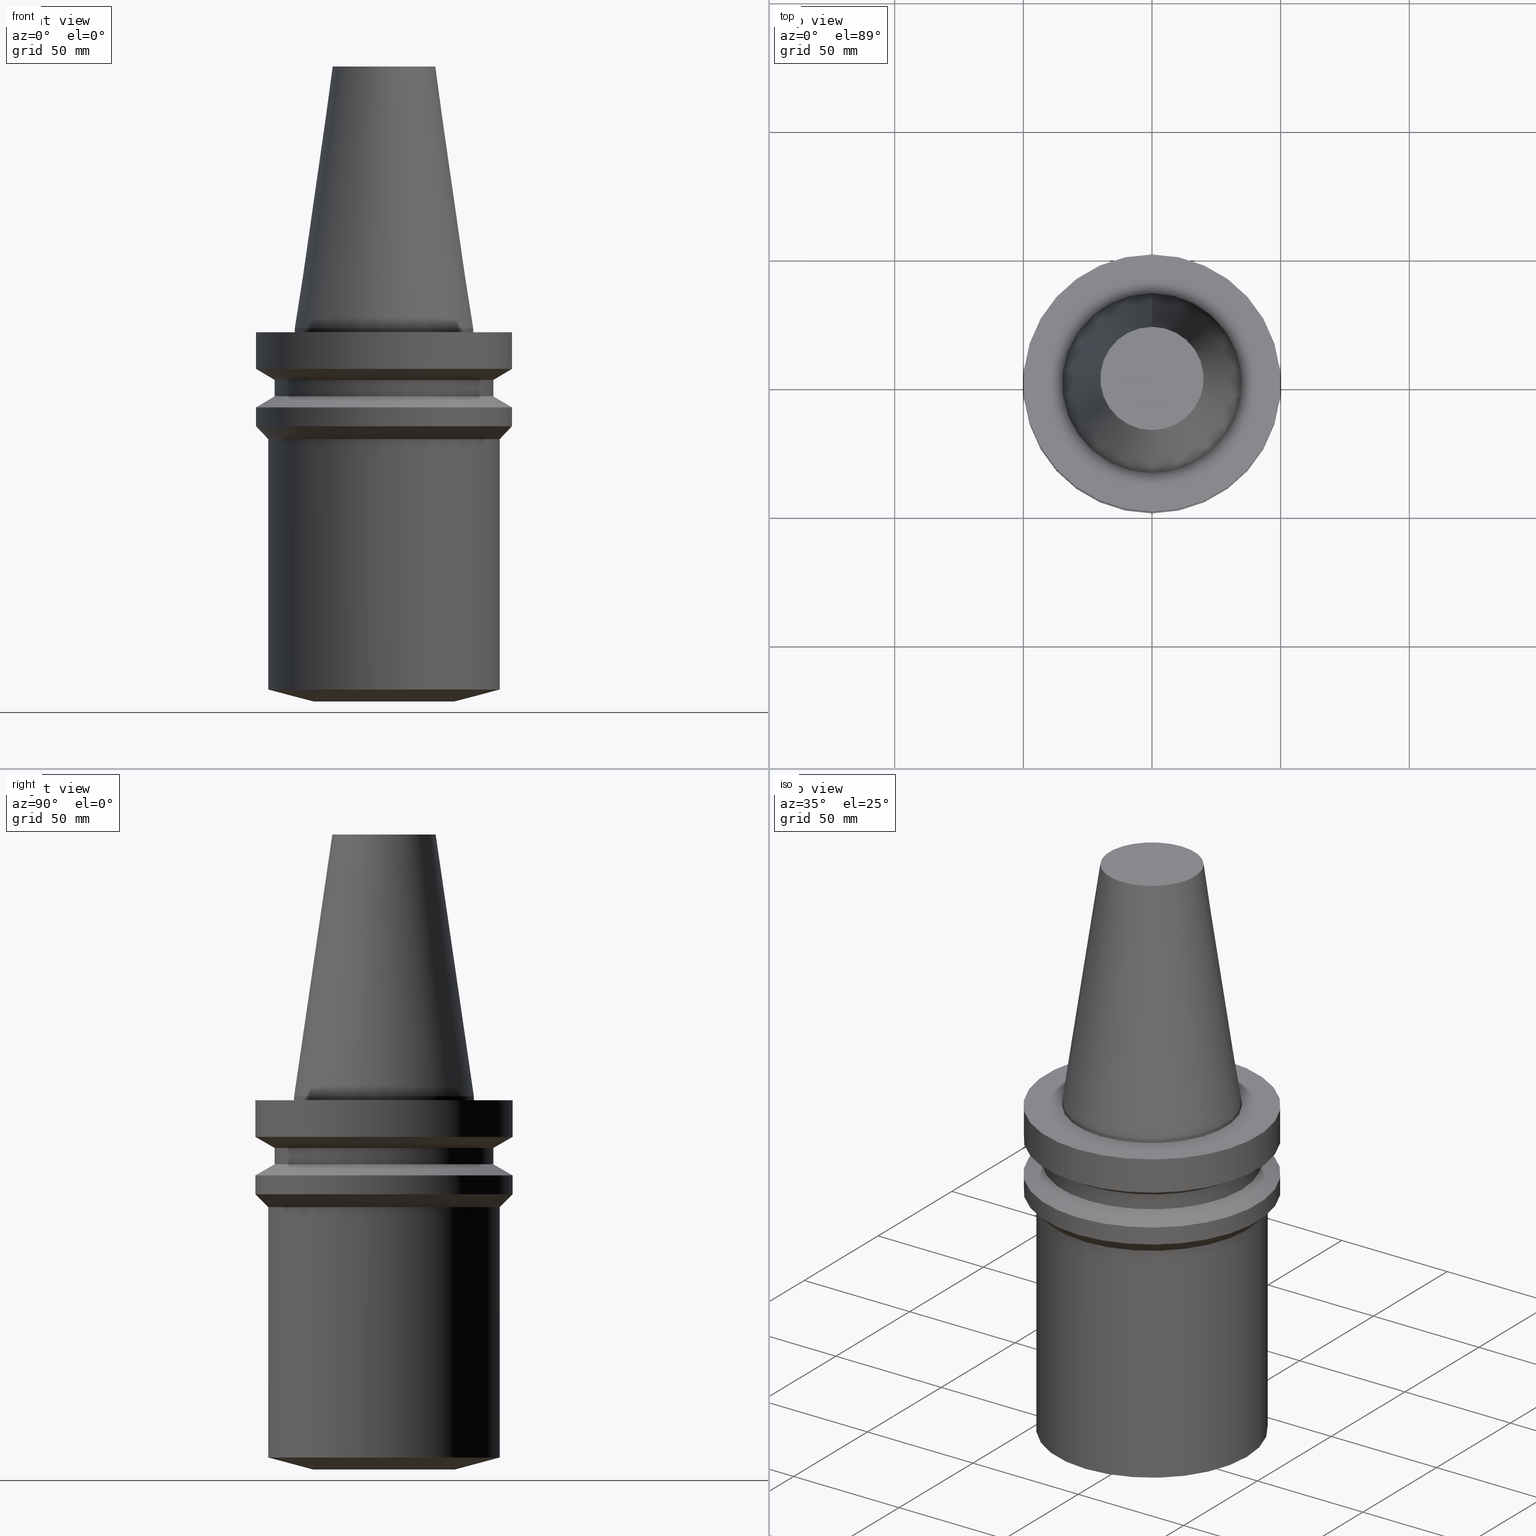
[diagram: canonical four-view strip — front | top / right | iso, engineering-drawing reading convention]
A machine part, canonical four-view strip (front | top / right | iso — engineering-drawing reading convention). The complete STEP part file that produces these views, byte-faithful:
ISO-10303-21;
HEADER;
FILE_DESCRIPTION((''),'1');
FILE_NAME('U:/Translate/02_3D_Field-HP\X2\FF71FF6FFF8CFF9F5916\X0\2013/02_Step_Field-HP\X2\FF71FF6FFF8CFF9F5916\X0\2013/BBTM/BBT50M-BSL50-145.stp','2015-02-11T01:39:47',(''),(''),'Spatial Interop R21 SP3','Kubotek KeyCreator 2011 V10.0.2 (22737)',' ');
FILE_SCHEMA(('automotive_design'));
ENDSEC;
DATA;
#1=MECHANICAL_DESIGN_GEOMETRIC_PRESENTATION_REPRESENTATION(' ',(#10,#11,#12,#13,#14,#15,#16,#17,#18,#19,#20,#21,#22,#23,#24,#25,#26,#27,#28,#29,#30,#31,#32,#33,#34,#35),#6);
#2=PRODUCT_DEFINITION_CONTEXT('',#36,'design');
#3=APPLICATION_PROTOCOL_DEFINITION('INTERNATIONAL STANDARD','automotive_design',1994,#36);
#4=PRODUCT_CATEGORY_RELATIONSHIP('NONE','NONE',#37,#38);
#5=SHAPE_DEFINITION_REPRESENTATION(#39,#40);
#6= (GEOMETRIC_REPRESENTATION_CONTEXT(3)GLOBAL_UNCERTAINTY_ASSIGNED_CONTEXT((#43))GLOBAL_UNIT_ASSIGNED_CONTEXT((#45,#46,#47))REPRESENTATION_CONTEXT('NONE','WORKSPACE'));
#10=STYLED_ITEM('',(#49,#50),#51);
#11=STYLED_ITEM('',(#52),#53);
#12=STYLED_ITEM('',(#54,#55),#56);
#13=STYLED_ITEM('',(#57,#58),#59);
#14=STYLED_ITEM('',(#60,#61),#62);
#15=STYLED_ITEM('',(#63),#64);
#16=STYLED_ITEM('',(#65,#66),#67);
#17=STYLED_ITEM('',(#68),#69);
#18=STYLED_ITEM('',(#70),#71);
#19=STYLED_ITEM('',(#72,#73),#74);
#20=STYLED_ITEM('',(#75),#76);
#21=STYLED_ITEM('',(#77),#78);
#22=STYLED_ITEM('',(#79),#80);
#23=STYLED_ITEM('',(#81),#82);
#24=STYLED_ITEM('',(#83),#84);
#25=STYLED_ITEM('',(#85),#86);
#26=STYLED_ITEM('',(#87,#88),#89);
#27=STYLED_ITEM('',(#90,#91),#92);
#28=STYLED_ITEM('',(#93,#94),#95);
#29=STYLED_ITEM('',(#96),#97);
#30=STYLED_ITEM('',(#98,#99),#100);
#31=STYLED_ITEM('',(#101),#102);
#32=STYLED_ITEM('',(#103,#104),#105);
#33=STYLED_ITEM('',(#106,#107),#108);
#34=STYLED_ITEM('',(#109,#110),#111);
#35=STYLED_ITEM('',(#112,#113),#114);
#36=APPLICATION_CONTEXT(' ');
#37=PRODUCT_CATEGORY('part','NONE');
#38=PRODUCT_RELATED_PRODUCT_CATEGORY('detail',' ',(#115));
#39=PRODUCT_DEFINITION_SHAPE('NONE','NONE',#116);
#40=ADVANCED_BREP_SHAPE_REPRESENTATION('Unnamed[1]',(#74,#117),#6);
#43=UNCERTAINTY_MEASURE_WITH_UNIT(LENGTH_MEASURE(1.0E-006),#45,'','');
#45= (CONVERSION_BASED_UNIT('MILLIMETRE',#120)LENGTH_UNIT()NAMED_UNIT(#123));
#46= (NAMED_UNIT(#125)PLANE_ANGLE_UNIT()SI_UNIT($,.RADIAN.));
#47= (NAMED_UNIT(#125)SOLID_ANGLE_UNIT()SI_UNIT($,.STERADIAN.));
#49=PRESENTATION_STYLE_ASSIGNMENT((#131));
#50=PRESENTATION_STYLE_ASSIGNMENT((#132));
#51=ADVANCED_FACE('Unnamed[1]',(#133,#134),#135,.T.);
#52=PRESENTATION_STYLE_ASSIGNMENT((#136));
#53=EDGE_CURVE('Unnamed[1]',#137,#137,#138,.T.);
#54=PRESENTATION_STYLE_ASSIGNMENT((#139));
#55=PRESENTATION_STYLE_ASSIGNMENT((#140));
#56=ADVANCED_FACE('Unnamed[1]',(#141,#142),#143,.T.);
#57=PRESENTATION_STYLE_ASSIGNMENT((#144));
#58=PRESENTATION_STYLE_ASSIGNMENT((#145));
#59=ADVANCED_FACE('Unnamed[1]',(#146,#147),#148,.T.);
#60=PRESENTATION_STYLE_ASSIGNMENT((#149));
#61=PRESENTATION_STYLE_ASSIGNMENT((#150));
#62=ADVANCED_FACE('Unnamed[1]',(#151,#152),#153,.T.);
#63=PRESENTATION_STYLE_ASSIGNMENT((#154));
#64=EDGE_CURVE('Unnamed[1]',#155,#155,#156,.T.);
#65=PRESENTATION_STYLE_ASSIGNMENT((#157));
#66=PRESENTATION_STYLE_ASSIGNMENT((#158));
#67=ADVANCED_FACE('Unnamed[1]',(#159),#160,.T.);
#68=PRESENTATION_STYLE_ASSIGNMENT((#161));
#69=EDGE_CURVE('Unnamed[1]',#162,#162,#163,.T.);
#70=PRESENTATION_STYLE_ASSIGNMENT((#164));
#71=EDGE_CURVE('Unnamed[1]',#165,#165,#166,.T.);
#72=PRESENTATION_STYLE_ASSIGNMENT((#167));
#73=PRESENTATION_STYLE_ASSIGNMENT((#168));
#74=MANIFOLD_SOLID_BREP('Unnamed[1]',#169);
#75=PRESENTATION_STYLE_ASSIGNMENT((#170));
#76=EDGE_CURVE('Unnamed[1]',#171,#171,#172,.T.);
#77=PRESENTATION_STYLE_ASSIGNMENT((#173));
#78=EDGE_CURVE('Unnamed[1]',#174,#174,#175,.T.);
#79=PRESENTATION_STYLE_ASSIGNMENT((#176));
#80=EDGE_CURVE('Unnamed[1]',#177,#177,#178,.T.);
#81=PRESENTATION_STYLE_ASSIGNMENT((#179));
#82=EDGE_CURVE('Unnamed[1]',#180,#180,#181,.T.);
#83=PRESENTATION_STYLE_ASSIGNMENT((#182));
#84=EDGE_CURVE('Unnamed[1]',#183,#183,#184,.T.);
#85=PRESENTATION_STYLE_ASSIGNMENT((#185));
#86=EDGE_CURVE('Unnamed[1]',#186,#186,#187,.T.);
#87=PRESENTATION_STYLE_ASSIGNMENT((#188));
#88=PRESENTATION_STYLE_ASSIGNMENT((#189));
#89=ADVANCED_FACE('Unnamed[1]',(#190),#191,.T.);
#90=PRESENTATION_STYLE_ASSIGNMENT((#192));
#91=PRESENTATION_STYLE_ASSIGNMENT((#193));
#92=ADVANCED_FACE('Unnamed[1]',(#194,#195),#196,.T.);
#93=PRESENTATION_STYLE_ASSIGNMENT((#197));
#94=PRESENTATION_STYLE_ASSIGNMENT((#198));
#95=ADVANCED_FACE('Unnamed[1]',(#199,#200),#201,.T.);
#96=PRESENTATION_STYLE_ASSIGNMENT((#202));
#97=EDGE_CURVE('Unnamed[1]',#203,#203,#204,.T.);
#98=PRESENTATION_STYLE_ASSIGNMENT((#205));
#99=PRESENTATION_STYLE_ASSIGNMENT((#206));
#100=ADVANCED_FACE('Unnamed[1]',(#207,#208),#209,.T.);
#101=PRESENTATION_STYLE_ASSIGNMENT((#210));
#102=EDGE_CURVE('Unnamed[1]',#211,#211,#212,.T.);
#103=PRESENTATION_STYLE_ASSIGNMENT((#213));
#104=PRESENTATION_STYLE_ASSIGNMENT((#214));
#105=ADVANCED_FACE('Unnamed[1]',(#215,#216),#217,.T.);
#106=PRESENTATION_STYLE_ASSIGNMENT((#218));
#107=PRESENTATION_STYLE_ASSIGNMENT((#219));
#108=ADVANCED_FACE('Unnamed[1]',(#220,#221),#222,.T.);
#109=PRESENTATION_STYLE_ASSIGNMENT((#223));
#110=PRESENTATION_STYLE_ASSIGNMENT((#224));
#111=ADVANCED_FACE('Unnamed[1]',(#225,#226),#227,.T.);
#112=PRESENTATION_STYLE_ASSIGNMENT((#228));
#113=PRESENTATION_STYLE_ASSIGNMENT((#229));
#114=ADVANCED_FACE('Unnamed[1]',(#230,#231),#232,.T.);
#115=PRODUCT('Unnamed[1]','Unnamed[1]','PART-Unnamed[1]-DESC',(#233));
#116=PRODUCT_DEFINITION('NONE','NONE',#234,#2);
#117=AXIS2_PLACEMENT_3D('',#235,#236,#237);
#120=LENGTH_MEASURE_WITH_UNIT(LENGTH_MEASURE(1.0),#238);
#123=DIMENSIONAL_EXPONENTS(1.0,0.0,0.0,0.0,0.0,0.0,0.0);
#125=DIMENSIONAL_EXPONENTS(0.0,0.0,0.0,0.0,0.0,0.0,0.0);
#131=SURFACE_STYLE_USAGE(.BOTH.,#239);
#132=CURVE_STYLE('',#240,POSITIVE_LENGTH_MEASURE(1000.0),#241);
#133=FACE_BOUND('',#242,.T.);
#134=FACE_BOUND('',#243,.T.);
#135=CYLINDRICAL_SURFACE('',#244,42.5);
#136=CURVE_STYLE('',#245,POSITIVE_LENGTH_MEASURE(1000.0),#246);
#137=VERTEX_POINT('',#247);
#138=CIRCLE('',#248,20.0791666658118);
#139=SURFACE_STYLE_USAGE(.BOTH.,#249);
#140=CURVE_STYLE('',#250,POSITIVE_LENGTH_MEASURE(1000.0),#251);
#141=FACE_BOUND('',#252,.T.);
#142=FACE_BOUND('',#253,.T.);
#143=CONICAL_SURFACE('',#254,47.5,0.785398163397448);
#144=SURFACE_STYLE_USAGE(.BOTH.,#255);
#145=CURVE_STYLE('',#256,POSITIVE_LENGTH_MEASURE(1000.0),#257);
#146=FACE_OUTER_BOUND('',#258,.T.);
#147=FACE_BOUND('',#259,.T.);
#148=PLANE('',#260);
#149=SURFACE_STYLE_USAGE(.BOTH.,#261);
#150=CURVE_STYLE('',#262,POSITIVE_LENGTH_MEASURE(1000.0),#263);
#151=FACE_BOUND('',#264,.T.);
#152=FACE_BOUND('',#265,.T.);
#153=CYLINDRICAL_SURFACE('',#266,34.925);
#154=CURVE_STYLE('',#267,POSITIVE_LENGTH_MEASURE(1000.0),#268);
#155=VERTEX_POINT('',#269);
#156=CIRCLE('',#270,42.5);
#157=SURFACE_STYLE_USAGE(.BOTH.,#271);
#158=CURVE_STYLE('',#272,POSITIVE_LENGTH_MEASURE(1000.0),#273);
#159=FACE_OUTER_BOUND('',#274,.T.);
#160=PLANE('',#275);
#161=CURVE_STYLE('',#276,POSITIVE_LENGTH_MEASURE(1000.0),#277);
#162=VERTEX_POINT('',#278);
#163=CIRCLE('',#279,50.0);
#164=CURVE_STYLE('',#280,POSITIVE_LENGTH_MEASURE(1000.0),#281);
#165=VERTEX_POINT('',#282);
#166=CIRCLE('',#283,34.925);
#167=SURFACE_STYLE_USAGE(.BOTH.,#284);
#168=CURVE_STYLE('',#285,POSITIVE_LENGTH_MEASURE(1000.0),#286);
#169=CLOSED_SHELL('',(#89,#95,#62,#59,#111,#100,#51,#92,#105,#56,#114,#108,#67));
#170=CURVE_STYLE('',#287,POSITIVE_LENGTH_MEASURE(1000.0),#288);
#171=VERTEX_POINT('',#289);
#172=CIRCLE('',#290,34.925);
#173=CURVE_STYLE('',#291,POSITIVE_LENGTH_MEASURE(1000.0),#292);
#174=VERTEX_POINT('',#293);
#175=CIRCLE('',#294,50.0);
#176=CURVE_STYLE('',#295,POSITIVE_LENGTH_MEASURE(1000.0),#296);
#177=VERTEX_POINT('',#297);
#178=CIRCLE('',#298,45.0);
#179=CURVE_STYLE('',#299,POSITIVE_LENGTH_MEASURE(1000.0),#300);
#180=VERTEX_POINT('',#301);
#181=CIRCLE('',#302,45.0);
#182=CURVE_STYLE('',#303,POSITIVE_LENGTH_MEASURE(1000.0),#304);
#183=VERTEX_POINT('',#305);
#184=CIRCLE('',#306,50.0);
#185=CURVE_STYLE('',#307,POSITIVE_LENGTH_MEASURE(1000.0),#308);
#186=VERTEX_POINT('',#309);
#187=CIRCLE('',#310,42.5);
#188=SURFACE_STYLE_USAGE(.BOTH.,#311);
#189=CURVE_STYLE('',#312,POSITIVE_LENGTH_MEASURE(1000.0),#313);
#190=FACE_OUTER_BOUND('',#314,.T.);
#191=PLANE('',#315);
#192=SURFACE_STYLE_USAGE(.BOTH.,#316);
#193=CURVE_STYLE('',#317,POSITIVE_LENGTH_MEASURE(1000.0),#318);
#194=FACE_BOUND('',#319,.T.);
#195=FACE_BOUND('',#320,.T.);
#196=CONICAL_SURFACE('',#321,46.25,1.04719755108882);
#197=SURFACE_STYLE_USAGE(.BOTH.,#322);
#198=CURVE_STYLE('',#323,POSITIVE_LENGTH_MEASURE(1000.0),#324);
#199=FACE_BOUND('',#325,.T.);
#200=FACE_BOUND('',#326,.T.);
#201=CONICAL_SURFACE('',#327,27.5020833329059,0.144812498247162);
#202=CURVE_STYLE('',#328,POSITIVE_LENGTH_MEASURE(1000.0),#329);
#203=VERTEX_POINT('',#330);
#204=CIRCLE('',#331,50.0);
#205=SURFACE_STYLE_USAGE(.BOTH.,#332);
#206=CURVE_STYLE('',#333,POSITIVE_LENGTH_MEASURE(1000.0),#334);
#207=FACE_BOUND('',#335,.T.);
#208=FACE_BOUND('',#336,.T.);
#209=CONICAL_SURFACE('',#337,46.25,1.04719755108882);
#210=CURVE_STYLE('',#338,POSITIVE_LENGTH_MEASURE(1000.0),#339);
#211=VERTEX_POINT('',#340);
#212=CIRCLE('',#341,27.5);
#213=SURFACE_STYLE_USAGE(.BOTH.,#342);
#214=CURVE_STYLE('',#343,POSITIVE_LENGTH_MEASURE(1000.0),#344);
#215=FACE_BOUND('',#345,.T.);
#216=FACE_BOUND('',#346,.T.);
#217=CYLINDRICAL_SURFACE('',#347,50.0);
#218=SURFACE_STYLE_USAGE(.BOTH.,#348);
#219=CURVE_STYLE('',#349,POSITIVE_LENGTH_MEASURE(1000.0),#350);
#220=FACE_BOUND('',#351,.T.);
#221=FACE_BOUND('',#352,.T.);
#222=CONICAL_SURFACE('',#353,36.25,1.30899693904639);
#223=SURFACE_STYLE_USAGE(.BOTH.,#354);
#224=CURVE_STYLE('',#355,POSITIVE_LENGTH_MEASURE(1000.0),#356);
#225=FACE_BOUND('',#357,.T.);
#226=FACE_BOUND('',#358,.T.);
#227=CYLINDRICAL_SURFACE('',#359,50.0);
#228=SURFACE_STYLE_USAGE(.BOTH.,#360);
#229=CURVE_STYLE('',#361,POSITIVE_LENGTH_MEASURE(1000.0),#362);
#230=FACE_BOUND('',#363,.T.);
#231=FACE_BOUND('',#364,.T.);
#232=CYLINDRICAL_SURFACE('',#365,45.0);
#233=PRODUCT_CONTEXT('',#36,'mechanical');
#234=PRODUCT_DEFINITION_FORMATION_WITH_SPECIFIED_SOURCE(' ','NONE',#115,.NOT_KNOWN.);
#235=CARTESIAN_POINT('',(0.0,0.0,0.0));
#236=DIRECTION('',(0.0,0.0,1.0));
#237=DIRECTION('',(1.0,0.0,0.0));
#238= (NAMED_UNIT(#123)LENGTH_UNIT()SI_UNIT(.MILLI.,.METRE.));
#239=SURFACE_SIDE_STYLE('',(#367));
#240=DRAUGHTING_PRE_DEFINED_CURVE_FONT('continuous');
#241=COLOUR_RGB('',0.0,1.0,0.0);
#242=EDGE_LOOP('',(#368));
#243=EDGE_LOOP('',(#369));
#244=AXIS2_PLACEMENT_3D('',#370,#371,#372);
#245=DRAUGHTING_PRE_DEFINED_CURVE_FONT('continuous');
#246=COLOUR_RGB('',0.0,1.0,0.0);
#247=CARTESIAN_POINT('',(-6.23345220766003E-015,20.0791666658118,101.8));
#248=AXIS2_PLACEMENT_3D('',#373,#374,#375);
#249=SURFACE_SIDE_STYLE('',(#376));
#250=DRAUGHTING_PRE_DEFINED_CURVE_FONT('continuous');
#251=COLOUR_RGB('',0.0,1.0,0.0);
#252=EDGE_LOOP('',(#377));
#253=EDGE_LOOP('',(#378));
#254=AXIS2_PLACEMENT_3D('',#379,#380,#381);
#255=SURFACE_SIDE_STYLE('',(#382));
#256=DRAUGHTING_PRE_DEFINED_CURVE_FONT('continuous');
#257=COLOUR_RGB('',0.0,1.0,0.0);
#258=EDGE_LOOP('',(#383));
#259=EDGE_LOOP('',(#384));
#260=AXIS2_PLACEMENT_3D('',#385,#386,#387);
#261=SURFACE_SIDE_STYLE('',(#388));
#262=DRAUGHTING_PRE_DEFINED_CURVE_FONT('continuous');
#263=COLOUR_RGB('',0.0,1.0,0.0);
#264=EDGE_LOOP('',(#389));
#265=EDGE_LOOP('',(#390));
#266=AXIS2_PLACEMENT_3D('',#391,#392,#393);
#267=DRAUGHTING_PRE_DEFINED_CURVE_FONT('continuous');
#268=COLOUR_RGB('',0.0,1.0,0.0);
#269=CARTESIAN_POINT('',(1.2264915470779E-015,42.5,-20.03012702));
#270=AXIS2_PLACEMENT_3D('',#394,#395,#396);
#271=SURFACE_SIDE_STYLE('',(#397));
#272=DRAUGHTING_PRE_DEFINED_CURVE_FONT('continuous');
#273=COLOUR_RGB('',0.0,1.0,0.0);
#274=EDGE_LOOP('',(#398));
#275=AXIS2_PLACEMENT_3D('',#399,#400,#401);
#276=DRAUGHTING_PRE_DEFINED_CURVE_FONT('continuous');
#277=COLOUR_RGB('',0.0,1.0,0.0);
#278=CARTESIAN_POINT('',(9.18485099360509E-017,50.0,-1.49999999999999));
#279=AXIS2_PLACEMENT_3D('',#402,#403,#404);
#280=DRAUGHTING_PRE_DEFINED_CURVE_FONT('continuous');
#281=COLOUR_RGB('',0.0,1.0,0.0);
#282=CARTESIAN_POINT('',(-4.30483861169435E-031,34.925,4.27707894602213E-015));
#283=AXIS2_PLACEMENT_3D('',#405,#406,#407);
#284=SURFACE_SIDE_STYLE('',(#408));
#285=DRAUGHTING_PRE_DEFINED_CURVE_FONT('continuous');
#286=COLOUR_RGB('',0.0,1.0,0.0);
#287=DRAUGHTING_PRE_DEFINED_CURVE_FONT('continuous');
#288=COLOUR_RGB('',0.0,1.0,0.0);
#289=CARTESIAN_POINT('',(9.18485099360511E-017,34.925,-1.5));
#290=AXIS2_PLACEMENT_3D('',#409,#410,#411);
#291=DRAUGHTING_PRE_DEFINED_CURVE_FONT('continuous');
#292=COLOUR_RGB('',0.0,1.0,0.0);
#293=CARTESIAN_POINT('',(2.32682891837997E-015,50.0,-38.0));
#294=AXIS2_PLACEMENT_3D('',#412,#413,#414);
#295=DRAUGHTING_PRE_DEFINED_CURVE_FONT('continuous');
#296=COLOUR_RGB('',0.0,1.0,0.0);
#297=CARTESIAN_POINT('',(2.63299061816681E-015,45.0,-43.0));
#298=AXIS2_PLACEMENT_3D('',#415,#416,#417);
#299=DRAUGHTING_PRE_DEFINED_CURVE_FONT('continuous');
#300=COLOUR_RGB('',0.0,1.0,0.0);
#301=CARTESIAN_POINT('',(8.5915640631372E-015,45.0,-140.310889133405));
#302=AXIS2_PLACEMENT_3D('',#418,#419,#420);
#303=DRAUGHTING_PRE_DEFINED_CURVE_FONT('continuous');
#304=COLOUR_RGB('',0.0,1.0,0.0);
#305=CARTESIAN_POINT('',(9.61347737330672E-016,50.0,-15.7));
#306=AXIS2_PLACEMENT_3D('',#421,#422,#423);
#307=DRAUGHTING_PRE_DEFINED_CURVE_FONT('continuous');
#308=COLOUR_RGB('',0.0,1.0,0.0);
#309=CARTESIAN_POINT('',(1.61468902694396E-015,42.5,-26.36987298));
#310=AXIS2_PLACEMENT_3D('',#424,#425,#426);
#311=SURFACE_SIDE_STYLE('',(#427));
#312=DRAUGHTING_PRE_DEFINED_CURVE_FONT('continuous');
#313=COLOUR_RGB('',0.0,1.0,0.0);
#314=EDGE_LOOP('',(#428));
#315=AXIS2_PLACEMENT_3D('',#429,#430,#431);
#316=SURFACE_SIDE_STYLE('',(#432));
#317=DRAUGHTING_PRE_DEFINED_CURVE_FONT('continuous');
#318=COLOUR_RGB('',0.0,1.0,0.0);
#319=EDGE_LOOP('',(#433));
#320=EDGE_LOOP('',(#434));
#321=AXIS2_PLACEMENT_3D('',#435,#436,#437);
#322=SURFACE_SIDE_STYLE('',(#438));
#323=DRAUGHTING_PRE_DEFINED_CURVE_FONT('continuous');
#324=COLOUR_RGB('',0.0,1.0,0.0);
#325=EDGE_LOOP('',(#439));
#326=EDGE_LOOP('',(#440));
#327=AXIS2_PLACEMENT_3D('',#441,#442,#443);
#328=DRAUGHTING_PRE_DEFINED_CURVE_FONT('continuous');
#329=COLOUR_RGB('',0.0,1.0,0.0);
#330=CARTESIAN_POINT('',(1.87983283669119E-015,50.0,-30.7));
#331=AXIS2_PLACEMENT_3D('',#444,#445,#446);
#332=SURFACE_SIDE_STYLE('',(#447));
#333=DRAUGHTING_PRE_DEFINED_CURVE_FONT('continuous');
#334=COLOUR_RGB('',0.0,1.0,0.0);
#335=EDGE_LOOP('',(#448));
#336=EDGE_LOOP('',(#449));
#337=AXIS2_PLACEMENT_3D('',#450,#451,#452);
#338=DRAUGHTING_PRE_DEFINED_CURVE_FONT('continuous');
#339=COLOUR_RGB('',0.0,1.0,0.0);
#340=CARTESIAN_POINT('',(8.87868929381831E-015,27.5,-145.0));
#341=AXIS2_PLACEMENT_3D('',#453,#454,#455);
#342=SURFACE_SIDE_STYLE('',(#456));
#343=DRAUGHTING_PRE_DEFINED_CURVE_FONT('continuous');
#344=COLOUR_RGB('',0.0,1.0,0.0);
#345=EDGE_LOOP('',(#457));
#346=EDGE_LOOP('',(#458));
#347=AXIS2_PLACEMENT_3D('',#459,#460,#461);
#348=SURFACE_SIDE_STYLE('',(#462));
#349=DRAUGHTING_PRE_DEFINED_CURVE_FONT('continuous');
#350=COLOUR_RGB('',0.0,1.0,0.0);
#351=EDGE_LOOP('',(#463));
#352=EDGE_LOOP('',(#464));
#353=AXIS2_PLACEMENT_3D('',#465,#466,#467);
#354=SURFACE_SIDE_STYLE('',(#468));
#355=DRAUGHTING_PRE_DEFINED_CURVE_FONT('continuous');
#356=COLOUR_RGB('',0.0,1.0,0.0);
#357=EDGE_LOOP('',(#469));
#358=EDGE_LOOP('',(#470));
#359=AXIS2_PLACEMENT_3D('',#471,#472,#473);
#360=SURFACE_SIDE_STYLE('',(#474));
#361=DRAUGHTING_PRE_DEFINED_CURVE_FONT('continuous');
#362=COLOUR_RGB('',0.0,1.0,0.0);
#363=EDGE_LOOP('',(#475));
#364=EDGE_LOOP('',(#476));
#365=AXIS2_PLACEMENT_3D('',#477,#478,#479);
#367=SURFACE_STYLE_FILL_AREA(#480);
#368=ORIENTED_EDGE('',*,*,#86,.F.);
#369=ORIENTED_EDGE('',*,*,#64,.T.);
#370=CARTESIAN_POINT('',(1.42059028701093E-015,2.84118057402186E-015,-23.2));
#371=DIRECTION('',(6.12323399573677E-017,1.22464679914735E-016,-1.0));
#372=DIRECTION('',(-1.23259516440783E-032,1.0,1.22464679914735E-016));
#373=CARTESIAN_POINT('',(-6.23345220766003E-015,-1.24669044153201E-014,101.8));
#374=DIRECTION('',(6.12323399573677E-017,1.22464679914735E-016,-1.0));
#375=DIRECTION('',(-1.23259516440783E-032,1.0,1.22464679914735E-016));
#376=SURFACE_STYLE_FILL_AREA(#481);
#377=ORIENTED_EDGE('',*,*,#80,.F.);
#378=ORIENTED_EDGE('',*,*,#78,.T.);
#379=CARTESIAN_POINT('',(2.47990976827339E-015,4.95981953654678E-015,-40.5));
#380=DIRECTION('',(-6.12323399573676E-017,-1.22464679914735E-016,1.0));
#381=DIRECTION('',(-1.23259516440783E-032,1.0,1.22464679914735E-016));
#382=SURFACE_STYLE_FILL_AREA(#482);
#383=ORIENTED_EDGE('',*,*,#69,.F.);
#384=ORIENTED_EDGE('',*,*,#76,.T.);
#385=CARTESIAN_POINT('',(9.1848509936051E-017,42.4625,-1.49999999999999));
#386=DIRECTION('',(-6.12323399573677E-017,-1.22464679914735E-016,1.0));
#387=DIRECTION('',(1.23259516440783E-032,-1.0,-1.22464679914735E-016));
#388=SURFACE_STYLE_FILL_AREA(#483);
#389=ORIENTED_EDGE('',*,*,#76,.F.);
#390=ORIENTED_EDGE('',*,*,#71,.T.);
#391=CARTESIAN_POINT('',(4.59242549680257E-017,9.18485099360515E-017,-0.75));
#392=DIRECTION('',(6.12323399573677E-017,1.22464679914735E-016,-1.0));
#393=DIRECTION('',(-1.23259516440783E-032,1.0,1.22464679914735E-016));
#394=CARTESIAN_POINT('',(1.2264915470779E-015,2.45298309415579E-015,-20.03012702));
#395=DIRECTION('',(6.12323399573677E-017,1.22464679914735E-016,-1.0));
#396=DIRECTION('',(-1.23259516440783E-032,1.0,1.22464679914735E-016));
#397=SURFACE_STYLE_FILL_AREA(#484);
#398=ORIENTED_EDGE('',*,*,#102,.T.);
#399=CARTESIAN_POINT('',(8.87868929381831E-015,13.75,-145.0));
#400=DIRECTION('',(6.12323399573677E-017,1.22464679914735E-016,-1.0));
#401=DIRECTION('',(-1.23259516440783E-032,1.0,1.22464679914735E-016));
#402=CARTESIAN_POINT('',(9.18485099360515E-017,1.83697019872103E-016,-1.5));
#403=DIRECTION('',(6.12323399573677E-017,1.22464679914735E-016,-1.0));
#404=DIRECTION('',(-1.23259516440783E-032,1.0,1.22464679914735E-016));
#405=CARTESIAN_POINT('',(0.0,0.0,0.0));
#406=DIRECTION('',(6.12323399573677E-017,1.22464679914735E-016,-1.0));
#407=DIRECTION('',(-1.23259516440783E-032,1.0,1.22464679914735E-016));
#408=SURFACE_STYLE_FILL_AREA(#485);
#409=CARTESIAN_POINT('',(9.18485099360515E-017,1.83697019872103E-016,-1.5));
#410=DIRECTION('',(6.12323399573677E-017,1.22464679914735E-016,-1.0));
#411=DIRECTION('',(-1.23259516440783E-032,1.0,1.22464679914735E-016));
#412=CARTESIAN_POINT('',(2.32682891837997E-015,4.65365783675994E-015,-38.0));
#413=DIRECTION('',(6.12323399573677E-017,1.22464679914735E-016,-1.0));
#414=DIRECTION('',(-1.23259516440783E-032,1.0,1.22464679914735E-016));
#415=CARTESIAN_POINT('',(2.63299061816681E-015,5.26598123633362E-015,-43.0));
#416=DIRECTION('',(6.12323399573677E-017,1.22464679914735E-016,-1.0));
#417=DIRECTION('',(-1.23259516440783E-032,1.0,1.22464679914735E-016));
#418=CARTESIAN_POINT('',(8.5915640631372E-015,1.71831281262744E-014,-140.310889133405));
#419=DIRECTION('',(6.12323399573677E-017,1.22464679914735E-016,-1.0));
#420=DIRECTION('',(-1.23259516440783E-032,1.0,1.22464679914735E-016));
#421=CARTESIAN_POINT('',(9.61347737330672E-016,1.92269547466134E-015,-15.7));
#422=DIRECTION('',(6.12323399573677E-017,1.22464679914735E-016,-1.0));
#423=DIRECTION('',(-1.23259516440783E-032,1.0,1.22464679914735E-016));
#424=CARTESIAN_POINT('',(1.61468902694396E-015,3.22937805388793E-015,-26.36987298));
#425=DIRECTION('',(6.12323399573677E-017,1.22464679914735E-016,-1.0));
#426=DIRECTION('',(-1.23259516440783E-032,1.0,1.22464679914735E-016));
#427=SURFACE_STYLE_FILL_AREA(#486);
#428=ORIENTED_EDGE('',*,*,#53,.F.);
#429=CARTESIAN_POINT('',(-6.23345220766003E-015,10.0395833329059,101.8));
#430=DIRECTION('',(-6.12323399573677E-017,-1.22464679914735E-016,1.0));
#431=DIRECTION('',(1.23259516440783E-032,-1.0,-1.22464679914735E-016));
#432=SURFACE_STYLE_FILL_AREA(#487);
#433=ORIENTED_EDGE('',*,*,#97,.F.);
#434=ORIENTED_EDGE('',*,*,#86,.T.);
#435=CARTESIAN_POINT('',(1.74726093181758E-015,3.49452186363515E-015,-28.53493649));
#436=DIRECTION('',(6.12323399573676E-017,1.22464679914735E-016,-1.0));
#437=DIRECTION('',(-1.23259516440783E-032,1.0,1.22464679914735E-016));
#438=SURFACE_STYLE_FILL_AREA(#488);
#439=ORIENTED_EDGE('',*,*,#71,.F.);
#440=ORIENTED_EDGE('',*,*,#53,.T.);
#441=CARTESIAN_POINT('',(-3.11672610383001E-015,-6.23345220766003E-015,50.9));
#442=DIRECTION('',(6.12323399573677E-017,1.22464679914735E-016,-1.0));
#443=DIRECTION('',(-1.23259516440783E-032,1.0,1.22464679914735E-016));
#444=CARTESIAN_POINT('',(1.87983283669119E-015,3.75966567338237E-015,-30.7));
#445=DIRECTION('',(6.12323399573677E-017,1.22464679914735E-016,-1.0));
#446=DIRECTION('',(-1.23259516440783E-032,1.0,1.22464679914735E-016));
#447=SURFACE_STYLE_FILL_AREA(#489);
#448=ORIENTED_EDGE('',*,*,#64,.F.);
#449=ORIENTED_EDGE('',*,*,#84,.T.);
#450=CARTESIAN_POINT('',(1.09391964220428E-015,2.18783928440857E-015,-17.86506351));
#451=DIRECTION('',(-6.12323399573676E-017,-1.22464679914735E-016,1.0));
#452=DIRECTION('',(-1.23259516440783E-032,1.0,1.22464679914735E-016));
#453=CARTESIAN_POINT('',(8.87868929381831E-015,1.77573785876366E-014,-145.0));
#454=DIRECTION('',(6.12323399573677E-017,1.22464679914735E-016,-1.0));
#455=DIRECTION('',(-1.23259516440783E-032,1.0,1.22464679914735E-016));
#456=SURFACE_STYLE_FILL_AREA(#490);
#457=ORIENTED_EDGE('',*,*,#78,.F.);
#458=ORIENTED_EDGE('',*,*,#97,.T.);
#459=CARTESIAN_POINT('',(2.10333087753558E-015,4.20666175507116E-015,-34.35));
#460=DIRECTION('',(6.12323399573677E-017,1.22464679914735E-016,-1.0));
#461=DIRECTION('',(-1.23259516440783E-032,1.0,1.22464679914735E-016));
#462=SURFACE_STYLE_FILL_AREA(#491);
#463=ORIENTED_EDGE('',*,*,#102,.F.);
#464=ORIENTED_EDGE('',*,*,#82,.T.);
#465=CARTESIAN_POINT('',(8.73512667847776E-015,1.74702533569555E-014,-142.655444566703));
#466=DIRECTION('',(-6.12323399573677E-017,-1.22464679914735E-016,1.0));
#467=DIRECTION('',(-1.23259516440783E-032,1.0,1.22464679914735E-016));
#468=SURFACE_STYLE_FILL_AREA(#492);
#469=ORIENTED_EDGE('',*,*,#84,.F.);
#470=ORIENTED_EDGE('',*,*,#69,.T.);
#471=CARTESIAN_POINT('',(5.26598123633362E-016,1.05319624726672E-015,-8.59999999999999));
#472=DIRECTION('',(6.12323399573677E-017,1.22464679914735E-016,-1.0));
#473=DIRECTION('',(-1.23259516440783E-032,1.0,1.22464679914735E-016));
#474=SURFACE_STYLE_FILL_AREA(#493);
#475=ORIENTED_EDGE('',*,*,#82,.F.);
#476=ORIENTED_EDGE('',*,*,#80,.T.);
#477=CARTESIAN_POINT('',(5.612277340652E-015,1.1224554681304E-014,-91.6554445667027));
#478=DIRECTION('',(6.12323399573677E-017,1.22464679914735E-016,-1.0));
#479=DIRECTION('',(-1.23259516440783E-032,1.0,1.22464679914735E-016));
#480=FILL_AREA_STYLE('',(#494));
#481=FILL_AREA_STYLE('',(#495));
#482=FILL_AREA_STYLE('',(#496));
#483=FILL_AREA_STYLE('',(#497));
#484=FILL_AREA_STYLE('',(#498));
#485=FILL_AREA_STYLE('',(#499));
#486=FILL_AREA_STYLE('',(#500));
#487=FILL_AREA_STYLE('',(#501));
#488=FILL_AREA_STYLE('',(#502));
#489=FILL_AREA_STYLE('',(#503));
#490=FILL_AREA_STYLE('',(#504));
#491=FILL_AREA_STYLE('',(#505));
#492=FILL_AREA_STYLE('',(#506));
#493=FILL_AREA_STYLE('',(#507));
#494=FILL_AREA_STYLE_COLOUR('',#508);
#495=FILL_AREA_STYLE_COLOUR('',#509);
#496=FILL_AREA_STYLE_COLOUR('',#510);
#497=FILL_AREA_STYLE_COLOUR('',#511);
#498=FILL_AREA_STYLE_COLOUR('',#512);
#499=FILL_AREA_STYLE_COLOUR('',#513);
#500=FILL_AREA_STYLE_COLOUR('',#514);
#501=FILL_AREA_STYLE_COLOUR('',#515);
#502=FILL_AREA_STYLE_COLOUR('',#516);
#503=FILL_AREA_STYLE_COLOUR('',#517);
#504=FILL_AREA_STYLE_COLOUR('',#518);
#505=FILL_AREA_STYLE_COLOUR('',#519);
#506=FILL_AREA_STYLE_COLOUR('',#520);
#507=FILL_AREA_STYLE_COLOUR('',#521);
#508=COLOUR_RGB('',0.0,1.0,0.0);
#509=COLOUR_RGB('',0.0,1.0,0.0);
#510=COLOUR_RGB('',0.0,1.0,0.0);
#511=COLOUR_RGB('',0.0,1.0,0.0);
#512=COLOUR_RGB('',0.0,1.0,0.0);
#513=COLOUR_RGB('',0.0,1.0,0.0);
#514=COLOUR_RGB('',0.0,1.0,0.0);
#515=COLOUR_RGB('',0.0,1.0,0.0);
#516=COLOUR_RGB('',0.0,1.0,0.0);
#517=COLOUR_RGB('',0.0,1.0,0.0);
#518=COLOUR_RGB('',0.0,1.0,0.0);
#519=COLOUR_RGB('',0.0,1.0,0.0);
#520=COLOUR_RGB('',0.0,1.0,0.0);
#521=COLOUR_RGB('',0.0,1.0,0.0);
ENDSEC;
END-ISO-10303-21;
